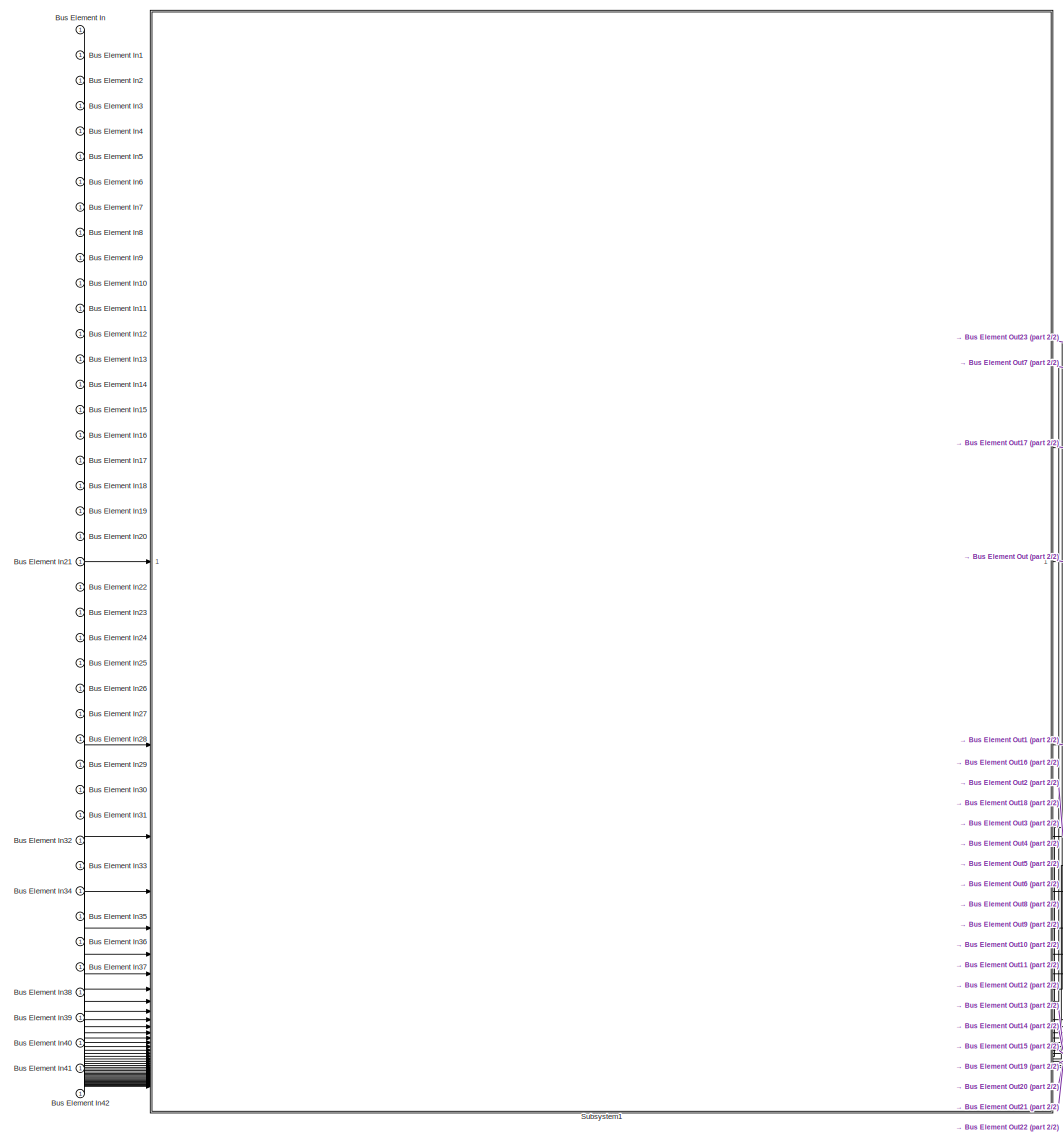
[diagram: root canvas - part 1/2, most of the canvas]
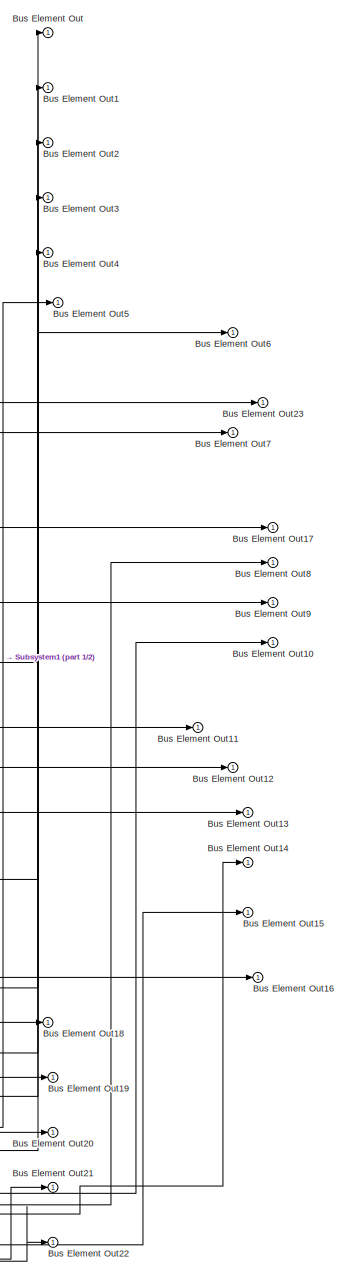
[diagram: root canvas - part 2/2, right side, full height]
MODEL slx_cfa6315b4d38
KIND model
CONFIG AbsTol = auto
CONFIG EnableMultiTasking = off
CONFIG FixedStep = 0.01
CONFIG MaxStep = auto
CONFIG MinStep = auto
CONFIG RelTol = 1e-3
CONFIG SampleTimeConstraint = Unconstrained
CONFIG SolverName = FixedStepAuto
CONFIG StartTime = 0.0
CONFIG StopTime = 10.0
BLOCK [Inport] Bus Element In
BLOCK [Inport] Bus Element In1
BLOCK [Inport] Bus Element In10
BLOCK [Inport] Bus Element In11
BLOCK [Inport] Bus Element In12
BLOCK [Inport] Bus Element In13
BLOCK [Inport] Bus Element In14
BLOCK [Inport] Bus Element In15
BLOCK [Inport] Bus Element In16
BLOCK [Inport] Bus Element In17
BLOCK [Inport] Bus Element In18
BLOCK [Inport] Bus Element In19
BLOCK [Inport] Bus Element In2
BLOCK [Inport] Bus Element In20
BLOCK [Inport] Bus Element In21
BLOCK [Inport] Bus Element In22
BLOCK [Inport] Bus Element In23
BLOCK [Inport] Bus Element In24
BLOCK [Inport] Bus Element In25
BLOCK [Inport] Bus Element In26
BLOCK [Inport] Bus Element In27
BLOCK [Inport] Bus Element In28
BLOCK [Inport] Bus Element In29
BLOCK [Inport] Bus Element In3
BLOCK [Inport] Bus Element In30
BLOCK [Inport] Bus Element In31
BLOCK [Inport] Bus Element In32
BLOCK [Inport] Bus Element In33
BLOCK [Inport] Bus Element In34
BLOCK [Inport] Bus Element In35
BLOCK [Inport] Bus Element In36
BLOCK [Inport] Bus Element In37
BLOCK [Inport] Bus Element In38
BLOCK [Inport] Bus Element In39
BLOCK [Inport] Bus Element In4
BLOCK [Inport] Bus Element In40
BLOCK [Inport] Bus Element In41
BLOCK [Inport] Bus Element In42
BLOCK [Inport] Bus Element In5
BLOCK [Inport] Bus Element In6
BLOCK [Inport] Bus Element In7
BLOCK [Inport] Bus Element In8
BLOCK [Inport] Bus Element In9
BLOCK [Outport] Bus Element Out
BLOCK [Outport] Bus Element Out1
BLOCK [Outport] Bus Element Out10
BLOCK [Outport] Bus Element Out11
BLOCK [Outport] Bus Element Out12
BLOCK [Outport] Bus Element Out13
BLOCK [Outport] Bus Element Out14
BLOCK [Outport] Bus Element Out15
BLOCK [Outport] Bus Element Out16
BLOCK [Outport] Bus Element Out17
BLOCK [Outport] Bus Element Out18
BLOCK [Outport] Bus Element Out19
BLOCK [Outport] Bus Element Out2
BLOCK [Outport] Bus Element Out20
BLOCK [Outport] Bus Element Out21
BLOCK [Outport] Bus Element Out22
BLOCK [Outport] Bus Element Out23
BLOCK [Outport] Bus Element Out3
BLOCK [Outport] Bus Element Out4
BLOCK [Outport] Bus Element Out5
BLOCK [Outport] Bus Element Out6
BLOCK [Outport] Bus Element Out7
BLOCK [Outport] Bus Element Out8
BLOCK [Outport] Bus Element Out9
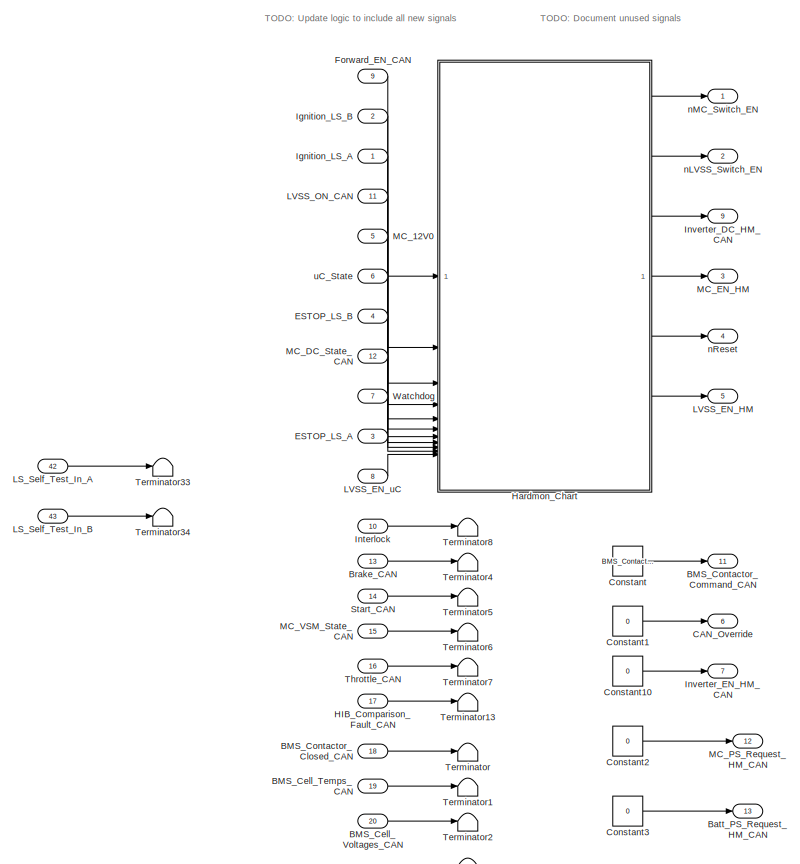
[diagram: Subsystem1 - part 1/2, full width, top band]
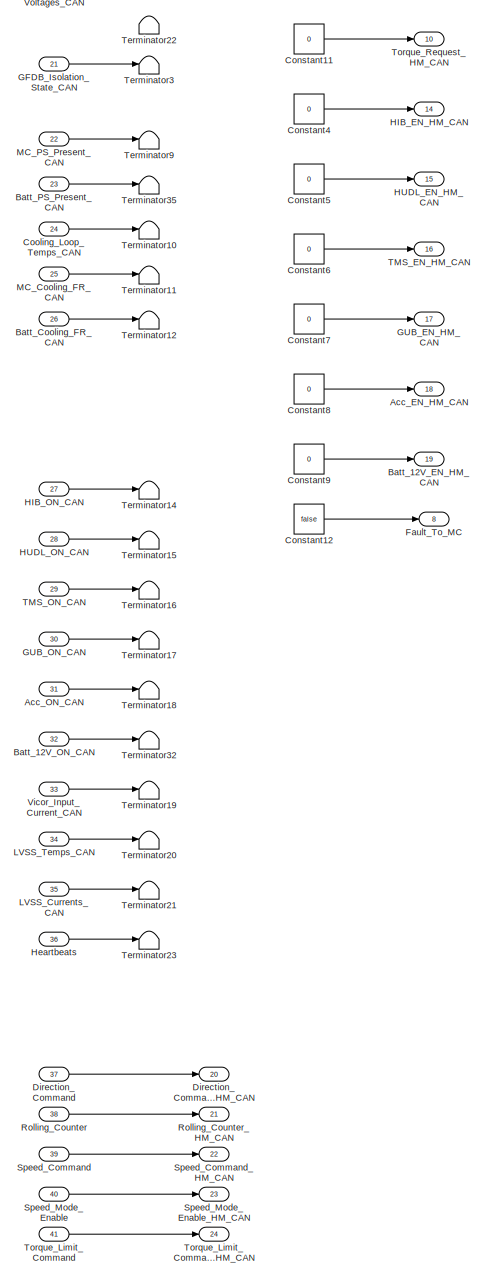
[diagram: Subsystem1 - part 2/2, bottom right region]
BLOCK [SubSystem] Subsystem1
BLOCK [Outport] Subsystem1/Acc_EN_HM_CAN
  OutDataTypeStr = boolean
  Port = 18
BLOCK [Inport] Subsystem1/Acc_ON_CAN
  OutDataTypeStr = boolean
  Port = 31
BLOCK [Inport] Subsystem1/BMS_Cell_Temps_CAN
  OutDataTypeStr = int32
  Port = 19
  PortDimensions = [1,45]
BLOCK [Inport] Subsystem1/BMS_Cell_Voltages_CAN
  OutDataTypeStr = int16
  Port = 20
  PortDimensions = [1,100]
BLOCK [Inport] Subsystem1/BMS_Contactor_Closed_CAN
  OutDataTypeStr = boolean
  Port = 18
BLOCK [Outport] Subsystem1/BMS_Contactor_Command_CAN
  OutDataTypeStr = Enum: BMS_Contactor_Command
  Port = 11
BLOCK [Outport] Subsystem1/Batt_12V_EN_HM_CAN
  OutDataTypeStr = boolean
  Port = 19
BLOCK [Inport] Subsystem1/Batt_12V_ON_CAN
  OutDataTypeStr = boolean
  Port = 32
BLOCK [Inport] Subsystem1/Batt_Cooling_FR_CAN
  OutDataTypeStr = int16
  Port = 26
BLOCK [Inport] Subsystem1/Batt_PS_Present_CAN
  OutDataTypeStr = uint8
  Port = 23
BLOCK [Outport] Subsystem1/Batt_PS_Request_HM_CAN
  Port = 13
BLOCK [Inport] Subsystem1/Brake_CAN
  OutDataTypeStr = boolean
  Port = 13
BLOCK [Outport] Subsystem1/CAN_Override
  OutDataTypeStr = boolean
  Port = 6
BLOCK [Constant] Subsystem1/Constant
  OutDataTypeStr = Enum: BMS_Contactor_Command
  Value = BMS_Contactor_Command.Open_Contactor
BLOCK [Constant] Subsystem1/Constant1
  OutDataTypeStr = boolean
  Value = 0
BLOCK [Constant] Subsystem1/Constant10
  OutDataTypeStr = boolean
  Value = 0
BLOCK [Constant] Subsystem1/Constant11
  OutDataTypeStr = int16
  Value = 0
BLOCK [Constant] Subsystem1/Constant12
  OutDataTypeStr = boolean
  Value = false
BLOCK [Constant] Subsystem1/Constant2
  OutDataTypeStr = uint8
  Value = 0
BLOCK [Constant] Subsystem1/Constant3
  OutDataTypeStr = uint8
  Value = 0
BLOCK [Constant] Subsystem1/Constant4
  OutDataTypeStr = boolean
  Value = 0
BLOCK [Constant] Subsystem1/Constant5
  OutDataTypeStr = boolean
  Value = 0
BLOCK [Constant] Subsystem1/Constant6
  OutDataTypeStr = boolean
  Value = 0
BLOCK [Constant] Subsystem1/Constant7
  OutDataTypeStr = boolean
  Value = 0
BLOCK [Constant] Subsystem1/Constant8
  OutDataTypeStr = boolean
  Value = 0
BLOCK [Constant] Subsystem1/Constant9
  OutDataTypeStr = boolean
  Value = 0
BLOCK [Inport] Subsystem1/Cooling_Loop_Temps_CAN
  OutDataTypeStr = int32
  Port = 24
  PortDimensions = [1,5]
BLOCK [Inport] Subsystem1/Direction_Command
  OutDataTypeStr = int16
  Port = 37
BLOCK [Outport] Subsystem1/Direction_Command_HM_CAN
  OutDataTypeStr = int16
  Port = 20
BLOCK [Inport] Subsystem1/ESTOP_LS_A
  OutDataTypeStr = boolean
  Port = 3
BLOCK [Inport] Subsystem1/ESTOP_LS_B
  OutDataTypeStr = boolean
  Port = 4
BLOCK [Outport] Subsystem1/Fault_To_MC
  OutDataTypeStr = boolean
  Port = 8
BLOCK [Inport] Subsystem1/Forward_EN_CAN
  OutDataTypeStr = boolean
  Port = 9
BLOCK [Inport] Subsystem1/GFDB_Isolation_State_CAN
  OutDataTypeStr = uint8
  Port = 21
BLOCK [Outport] Subsystem1/GUB_EN_HM_CAN
  OutDataTypeStr = boolean
  Port = 17
BLOCK [Inport] Subsystem1/GUB_ON_CAN
  OutDataTypeStr = boolean
  Port = 30
BLOCK [Inport] Subsystem1/HIB_Comparison_Fault_CAN
  OutDataTypeStr = boolean
  Port = 17
BLOCK [Outport] Subsystem1/HIB_EN_HM_CAN
  OutDataTypeStr = boolean
  Port = 14
BLOCK [Inport] Subsystem1/HIB_ON_CAN
  OutDataTypeStr = boolean
  Port = 27
BLOCK [Outport] Subsystem1/HUDL_EN_HM_CAN
  OutDataTypeStr = boolean
  Port = 15
BLOCK [Inport] Subsystem1/HUDL_ON_CAN
  OutDataTypeStr = boolean
  Port = 28
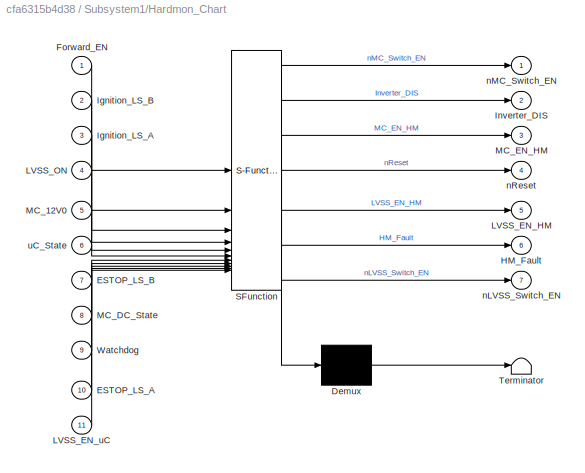
BLOCK [SubSystem] Subsystem1/Hardmon_Chart
  ErrorFcn = Stateflow.Translate.translate
  PermitHierarchicalResolution = ExplicitOnly
  PortSchema = {"entries":[{"content":{"sides":[{"content":{"connectorIds":["In1","In2","In3","In4","In5","In6","In7","In8","In9","In10","In11"]},"type":"ConnectorPlacement.EquallySpacedRectSide","uuid":"6d1a41ef-67e8-41d6-9adb-1761831f6d0e"},{"content":{"connectorIds":["Out1","Out7","Out2","Out3","Out4","Out5","Out6"],"side":"RIGHT"},"type":"ConnectorPlacement.EquallySpacedRectSide","uuid":"1c1f5b1f-9a19-48ee-a...<+326ch>
  SFBlockType = Chart
  TreatAsAtomicUnit = on
BLOCK [Demux] Subsystem1/Hardmon_Chart/ Demux 
  Outputs = 1
BLOCK [S-Function] Subsystem1/Hardmon_Chart/ SFunction 
  EnableBusSupport = off
  FunctionName = sf_sfun
  PortCounts = [11 8]
  SFcnIsStateOwnerBlock = off
  SFunctionDeploymentMode = off
  Tag = Stateflow S-Function 3
BLOCK [Terminator] Subsystem1/Hardmon_Chart/ Terminator 
BLOCK [Inport] Subsystem1/Hardmon_Chart/ESTOP_LS_A
  Port = 10
BLOCK [Inport] Subsystem1/Hardmon_Chart/ESTOP_LS_B
  Port = 7
BLOCK [Inport] Subsystem1/Hardmon_Chart/Forward_EN
BLOCK [Outport] Subsystem1/Hardmon_Chart/HM_Fault
  Port = 6
BLOCK [Inport] Subsystem1/Hardmon_Chart/Ignition_LS_A
  Port = 3
BLOCK [Inport] Subsystem1/Hardmon_Chart/Ignition_LS_B
  Port = 2
BLOCK [Outport] Subsystem1/Hardmon_Chart/Inverter_DIS
  Port = 2
BLOCK [Outport] Subsystem1/Hardmon_Chart/LVSS_EN_HM
  Port = 5
BLOCK [Inport] Subsystem1/Hardmon_Chart/LVSS_EN_uC
  Port = 11
BLOCK [Inport] Subsystem1/Hardmon_Chart/LVSS_ON
  Port = 4
BLOCK [Inport] Subsystem1/Hardmon_Chart/MC_12V0
  Port = 5
BLOCK [Inport] Subsystem1/Hardmon_Chart/MC_DC_State
  Port = 8
BLOCK [Outport] Subsystem1/Hardmon_Chart/MC_EN_HM
  Port = 3
BLOCK [Inport] Subsystem1/Hardmon_Chart/Watchdog
  Port = 9
BLOCK [Outport] Subsystem1/Hardmon_Chart/nLVSS_Switch_EN
  Port = 7
BLOCK [Outport] Subsystem1/Hardmon_Chart/nMC_Switch_EN
BLOCK [Outport] Subsystem1/Hardmon_Chart/nReset
  Port = 4
BLOCK [Inport] Subsystem1/Hardmon_Chart/uC_State
  Port = 6
BLOCK [Inport] Subsystem1/Heartbeats
  OutDataTypeStr = uint32
  Port = 36
  PortDimensions = [1,5]
BLOCK [Inport] Subsystem1/Ignition_LS_A
  OutDataTypeStr = boolean
BLOCK [Inport] Subsystem1/Ignition_LS_B
  OutDataTypeStr = boolean
  Port = 2
BLOCK [Inport] Subsystem1/Interlock
  OutDataTypeStr = boolean
  Port = 10
BLOCK [Outport] Subsystem1/Inverter_DC_HM_CAN
  OutDataTypeStr = boolean
  Port = 9
BLOCK [Outport] Subsystem1/Inverter_EN_HM_CAN
  OutDataTypeStr = boolean
  Port = 7
BLOCK [Inport] Subsystem1/LS_Self_Test_In_A
  OutDataTypeStr = boolean
  Port = 42
BLOCK [Inport] Subsystem1/LS_Self_Test_In_B
  OutDataTypeStr = boolean
  Port = 43
BLOCK [Inport] Subsystem1/LVSS_Currents_CAN
  OutDataTypeStr = int16
  Port = 35
  PortDimensions = [1,6]
BLOCK [Outport] Subsystem1/LVSS_EN_HM
  OutDataTypeStr = boolean
  Port = 5
BLOCK [Inport] Subsystem1/LVSS_EN_uC
  OutDataTypeStr = boolean
  Port = 8
BLOCK [Inport] Subsystem1/LVSS_ON_CAN
  OutDataTypeStr = boolean
  Port = 11
BLOCK [Inport] Subsystem1/LVSS_Temps_CAN
  OutDataTypeStr = int32
  Port = 34
  PortDimensions = [1,6]
BLOCK [Inport] Subsystem1/MC_12V0
  OutDataTypeStr = boolean
  Port = 5
BLOCK [Inport] Subsystem1/MC_Cooling_FR_CAN
  OutDataTypeStr = int16
  Port = 25
BLOCK [Inport] Subsystem1/MC_DC_State_CAN
  OutDataTypeStr = Enum: MC_DC_State
  Port = 12
BLOCK [Outport] Subsystem1/MC_EN_HM
  OutDataTypeStr = boolean
  Port = 3
BLOCK [Inport] Subsystem1/MC_PS_Present_CAN
  OutDataTypeStr = uint8
  Port = 22
BLOCK [Outport] Subsystem1/MC_PS_Request_HM_CAN
  Port = 12
BLOCK [Inport] Subsystem1/MC_VSM_State_CAN
  OutDataTypeStr = Enum: MC_VSM_State
  Port = 15
BLOCK [Inport] Subsystem1/Rolling_Counter
  OutDataTypeStr = int16
  Port = 38
BLOCK [Outport] Subsystem1/Rolling_Counter_HM_CAN
  OutDataTypeStr = int16
  Port = 21
BLOCK [Inport] Subsystem1/Speed_Command
  OutDataTypeStr = int16
  Port = 39
BLOCK [Outport] Subsystem1/Speed_Command_HM_CAN
  OutDataTypeStr = int16
  Port = 22
BLOCK [Inport] Subsystem1/Speed_Mode_Enable
  OutDataTypeStr = int16
  Port = 40
BLOCK [Outport] Subsystem1/Speed_Mode_Enable_HM_CAN
  OutDataTypeStr = int16
  Port = 23
BLOCK [Inport] Subsystem1/Start_CAN
  OutDataTypeStr = boolean
  Port = 14
BLOCK [Outport] Subsystem1/TMS_EN_HM_CAN
  OutDataTypeStr = boolean
  Port = 16
BLOCK [Inport] Subsystem1/TMS_ON_CAN
  OutDataTypeStr = boolean
  Port = 29
BLOCK [Terminator] Subsystem1/Terminator
BLOCK [Terminator] Subsystem1/Terminator1
BLOCK [Terminator] Subsystem1/Terminator10
BLOCK [Terminator] Subsystem1/Terminator11
BLOCK [Terminator] Subsystem1/Terminator12
BLOCK [Terminator] Subsystem1/Terminator13
BLOCK [Terminator] Subsystem1/Terminator14
BLOCK [Terminator] Subsystem1/Terminator15
BLOCK [Terminator] Subsystem1/Terminator16
BLOCK [Terminator] Subsystem1/Terminator17
BLOCK [Terminator] Subsystem1/Terminator18
BLOCK [Terminator] Subsystem1/Terminator19
BLOCK [Terminator] Subsystem1/Terminator2
BLOCK [Terminator] Subsystem1/Terminator20
BLOCK [Terminator] Subsystem1/Terminator21
BLOCK [Terminator] Subsystem1/Terminator22
BLOCK [Terminator] Subsystem1/Terminator23
BLOCK [Terminator] Subsystem1/Terminator3
BLOCK [Terminator] Subsystem1/Terminator32
BLOCK [Terminator] Subsystem1/Terminator33
BLOCK [Terminator] Subsystem1/Terminator34
BLOCK [Terminator] Subsystem1/Terminator35
BLOCK [Terminator] Subsystem1/Terminator4
BLOCK [Terminator] Subsystem1/Terminator5
BLOCK [Terminator] Subsystem1/Terminator6
BLOCK [Terminator] Subsystem1/Terminator7
BLOCK [Terminator] Subsystem1/Terminator8
BLOCK [Terminator] Subsystem1/Terminator9
BLOCK [Inport] Subsystem1/Throttle_CAN
  OutDataTypeStr = int16
  Port = 16
BLOCK [Inport] Subsystem1/Torque_Limit_Command
  OutDataTypeStr = int16
  Port = 41
BLOCK [Outport] Subsystem1/Torque_Limit_Command_HM_CAN
  OutDataTypeStr = int16
  Port = 24
BLOCK [Outport] Subsystem1/Torque_Request_HM_CAN
  OutDataTypeStr = int16
  Port = 10
BLOCK [Inport] Subsystem1/Vicor_Input_Current_CAN
  OutDataTypeStr = int16
  Port = 33
BLOCK [Inport] Subsystem1/Watchdog
  OutDataTypeStr = boolean
  Port = 7
BLOCK [Outport] Subsystem1/nLVSS_Switch_EN
  OutDataTypeStr = boolean
  Port = 2
BLOCK [Outport] Subsystem1/nMC_Switch_EN
  OutDataTypeStr = boolean
BLOCK [Outport] Subsystem1/nReset
  OutDataTypeStr = boolean
  Port = 4
BLOCK [Inport] Subsystem1/uC_State
  OutDataTypeStr = Enum: UC_State
  Port = 6
ANNOTATION Subsystem1: TODO: Document unused signals
ANNOTATION Subsystem1: TODO: Update logic to include all new signals
LINE Bus Element In10:1 -> Subsystem1:11
LINE Bus Element In11:1 -> Subsystem1:12
LINE Bus Element In12:1 -> Subsystem1:13
LINE Bus Element In13:1 -> Subsystem1:14
LINE Bus Element In14:1 -> Subsystem1:15
LINE Bus Element In15:1 -> Subsystem1:16
LINE Bus Element In16:1 -> Subsystem1:17
LINE Bus Element In17:1 -> Subsystem1:18
LINE Bus Element In18:1 -> Subsystem1:19
LINE Bus Element In19:1 -> Subsystem1:20
LINE Bus Element In1:1 -> Subsystem1:2
LINE Bus Element In20:1 -> Subsystem1:21
LINE Bus Element In21:1 -> Subsystem1:22
LINE Bus Element In22:1 -> Subsystem1:23
LINE Bus Element In23:1 -> Subsystem1:24
LINE Bus Element In24:1 -> Subsystem1:25
LINE Bus Element In25:1 -> Subsystem1:26
LINE Bus Element In26:1 -> Subsystem1:27
LINE Bus Element In27:1 -> Subsystem1:28
LINE Bus Element In28:1 -> Subsystem1:29
LINE Bus Element In29:1 -> Subsystem1:30
LINE Bus Element In2:1 -> Subsystem1:3
LINE Bus Element In30:1 -> Subsystem1:31
LINE Bus Element In31:1 -> Subsystem1:32
LINE Bus Element In32:1 -> Subsystem1:33
LINE Bus Element In33:1 -> Subsystem1:34
LINE Bus Element In34:1 -> Subsystem1:35
LINE Bus Element In35:1 -> Subsystem1:36
LINE Bus Element In36:1 -> Subsystem1:37
LINE Bus Element In37:1 -> Subsystem1:38
LINE Bus Element In38:1 -> Subsystem1:39
LINE Bus Element In39:1 -> Subsystem1:40
LINE Bus Element In3:1 -> Subsystem1:4
LINE Bus Element In40:1 -> Subsystem1:41
LINE Bus Element In41:1 -> Subsystem1:42
LINE Bus Element In42:1 -> Subsystem1:43
LINE Bus Element In4:1 -> Subsystem1:5
LINE Bus Element In5:1 -> Subsystem1:6
LINE Bus Element In6:1 -> Subsystem1:7
LINE Bus Element In7:1 -> Subsystem1:8
LINE Bus Element In8:1 -> Subsystem1:9
LINE Bus Element In9:1 -> Subsystem1:10
LINE Bus Element In:1 -> Subsystem1:1
LINE Subsystem1/Acc_ON_CAN:1 -> Subsystem1/Terminator18:1
LINE Subsystem1/BMS_Cell_Temps_CAN:1 -> Subsystem1/Terminator1:1
LINE Subsystem1/BMS_Cell_Voltages_CAN:1 -> Subsystem1/Terminator2:1
LINE Subsystem1/BMS_Contactor_Closed_CAN:1 -> Subsystem1/Terminator:1
LINE Subsystem1/Batt_12V_ON_CAN:1 -> Subsystem1/Terminator32:1
LINE Subsystem1/Batt_Cooling_FR_CAN:1 -> Subsystem1/Terminator12:1
LINE Subsystem1/Batt_PS_Present_CAN:1 -> Subsystem1/Terminator35:1
LINE Subsystem1/Brake_CAN:1 -> Subsystem1/Terminator4:1
LINE Subsystem1/Constant10:1 -> Subsystem1/Inverter_EN_HM_CAN:1
LINE Subsystem1/Constant11:1 -> Subsystem1/Torque_Request_HM_CAN:1
LINE Subsystem1/Constant12:1 -> Subsystem1/Fault_To_MC:1
LINE Subsystem1/Constant1:1 -> Subsystem1/CAN_Override:1
LINE Subsystem1/Constant2:1 -> Subsystem1/MC_PS_Request_HM_CAN:1
LINE Subsystem1/Constant3:1 -> Subsystem1/Batt_PS_Request_HM_CAN:1
LINE Subsystem1/Constant4:1 -> Subsystem1/HIB_EN_HM_CAN:1
LINE Subsystem1/Constant5:1 -> Subsystem1/HUDL_EN_HM_CAN:1
LINE Subsystem1/Constant6:1 -> Subsystem1/TMS_EN_HM_CAN:1
LINE Subsystem1/Constant7:1 -> Subsystem1/GUB_EN_HM_CAN:1
LINE Subsystem1/Constant8:1 -> Subsystem1/Acc_EN_HM_CAN:1
LINE Subsystem1/Constant9:1 -> Subsystem1/Batt_12V_EN_HM_CAN:1
LINE Subsystem1/Constant:1 -> Subsystem1/BMS_Contactor_Command_CAN:1
LINE Subsystem1/Cooling_Loop_Temps_CAN:1 -> Subsystem1/Terminator10:1
LINE Subsystem1/Direction_Command:1 -> Subsystem1/Direction_Command_HM_CAN:1
LINE Subsystem1/ESTOP_LS_A:1 -> Subsystem1/Hardmon_Chart:10
LINE Subsystem1/ESTOP_LS_B:1 -> Subsystem1/Hardmon_Chart:7
LINE Subsystem1/Forward_EN_CAN:1 -> Subsystem1/Hardmon_Chart:1
LINE Subsystem1/GFDB_Isolation_State_CAN:1 -> Subsystem1/Terminator3:1
LINE Subsystem1/GUB_ON_CAN:1 -> Subsystem1/Terminator17:1
LINE Subsystem1/HIB_Comparison_Fault_CAN:1 -> Subsystem1/Terminator13:1
LINE Subsystem1/HIB_ON_CAN:1 -> Subsystem1/Terminator14:1
LINE Subsystem1/HUDL_ON_CAN:1 -> Subsystem1/Terminator15:1
LINE Subsystem1/Hardmon_Chart:1 -> Subsystem1/nMC_Switch_EN:1
LINE Subsystem1/Hardmon_Chart:2 -> Subsystem1/Inverter_DC_HM_CAN:1
LINE Subsystem1/Hardmon_Chart:3 -> Subsystem1/MC_EN_HM:1
LINE Subsystem1/Hardmon_Chart:4 -> Subsystem1/nReset:1
LINE Subsystem1/Hardmon_Chart:5 -> Subsystem1/LVSS_EN_HM:1
LINE Subsystem1/Hardmon_Chart:7 -> Subsystem1/nLVSS_Switch_EN:1
LINE Subsystem1/Heartbeats:1 -> Subsystem1/Terminator23:1
LINE Subsystem1/Ignition_LS_A:1 -> Subsystem1/Hardmon_Chart:3
LINE Subsystem1/Ignition_LS_B:1 -> Subsystem1/Hardmon_Chart:2
LINE Subsystem1/Interlock:1 -> Subsystem1/Terminator8:1
LINE Subsystem1/LS_Self_Test_In_A:1 -> Subsystem1/Terminator33:1
LINE Subsystem1/LS_Self_Test_In_B:1 -> Subsystem1/Terminator34:1
LINE Subsystem1/LVSS_Currents_CAN:1 -> Subsystem1/Terminator21:1
LINE Subsystem1/LVSS_EN_uC:1 -> Subsystem1/Hardmon_Chart:11
LINE Subsystem1/LVSS_ON_CAN:1 -> Subsystem1/Hardmon_Chart:4
LINE Subsystem1/LVSS_Temps_CAN:1 -> Subsystem1/Terminator20:1
LINE Subsystem1/MC_12V0:1 -> Subsystem1/Hardmon_Chart:5
LINE Subsystem1/MC_Cooling_FR_CAN:1 -> Subsystem1/Terminator11:1
LINE Subsystem1/MC_DC_State_CAN:1 -> Subsystem1/Hardmon_Chart:8
LINE Subsystem1/MC_PS_Present_CAN:1 -> Subsystem1/Terminator9:1
LINE Subsystem1/MC_VSM_State_CAN:1 -> Subsystem1/Terminator6:1
LINE Subsystem1/Rolling_Counter:1 -> Subsystem1/Rolling_Counter_HM_CAN:1
LINE Subsystem1/Speed_Command:1 -> Subsystem1/Speed_Command_HM_CAN:1
LINE Subsystem1/Speed_Mode_Enable:1 -> Subsystem1/Speed_Mode_Enable_HM_CAN:1
LINE Subsystem1/Start_CAN:1 -> Subsystem1/Terminator5:1
LINE Subsystem1/TMS_ON_CAN:1 -> Subsystem1/Terminator16:1
LINE Subsystem1/Throttle_CAN:1 -> Subsystem1/Terminator7:1
LINE Subsystem1/Torque_Limit_Command:1 -> Subsystem1/Torque_Limit_Command_HM_CAN:1
LINE Subsystem1/Vicor_Input_Current_CAN:1 -> Subsystem1/Terminator19:1
LINE Subsystem1/Watchdog:1 -> Subsystem1/Hardmon_Chart:9
LINE Subsystem1/uC_State:1 -> Subsystem1/Hardmon_Chart:6
LINE Subsystem1:1 -> Bus Element Out:1
LINE Subsystem1:10 -> Bus Element Out17:1
LINE Subsystem1:11 -> Bus Element Out8:1
LINE Subsystem1:12 -> Bus Element Out9:1
LINE Subsystem1:13 -> Bus Element Out10:1
LINE Subsystem1:14 -> Bus Element Out11:1
LINE Subsystem1:15 -> Bus Element Out12:1
LINE Subsystem1:16 -> Bus Element Out13:1
LINE Subsystem1:17 -> Bus Element Out14:1
LINE Subsystem1:18 -> Bus Element Out15:1
LINE Subsystem1:19 -> Bus Element Out16:1
LINE Subsystem1:2 -> Bus Element Out1:1
LINE Subsystem1:20 -> Bus Element Out18:1
LINE Subsystem1:21 -> Bus Element Out19:1
LINE Subsystem1:22 -> Bus Element Out20:1
LINE Subsystem1:23 -> Bus Element Out21:1
LINE Subsystem1:24 -> Bus Element Out22:1
LINE Subsystem1:3 -> Bus Element Out2:1
LINE Subsystem1:4 -> Bus Element Out3:1
LINE Subsystem1:5 -> Bus Element Out4:1
LINE Subsystem1:6 -> Bus Element Out5:1
LINE Subsystem1:7 -> Bus Element Out6:1
LINE Subsystem1:8 -> Bus Element Out23:1
LINE Subsystem1:9 -> Bus Element Out7:1
CHART Subsystem1/Hardmon_Chart states=40 transitions=40
  STATE_LABEL '<!DOCTYPE HTML PUBLIC "-//W3C//DTD HTML 4.0//EN" "http://www.w3.org/TR/REC-html40/strict.dtd">\n<html><head><meta name="qrichtext" content="1" /><style type="text/css">\np, li { white-space: pre-wrap; }\n</style></head><body align="left" style=" font-family:\'Helvetica\'; font-size:12px; font-weight:400; font-style:normal;">\n<p align="left" style=" margin-top:0px; margin-bottom:0px; margin-left:0px; ma...<+699ch>'
  STATE_LABEL 'Normal_Operation'
  STATE_LABEL 'ESTOP_Checking'
  STATE_LABEL 'count\nentry:\nESTOP_Counter = ESTOP_Counter + 1;\n'
  STATE_LABEL 'ESTOP_Inactive\nentry:\nHM_Fault = false;\nESTOP_Counter = 0;\nnMC_Switch_EN = false;\nnLVSS_Switch_EN = false;\nLVSS_EN_HM = LVSS_EN_uC;'
  STATE_LABEL '[ESTOP_LS_A == true && uC_State ~= UC_State.Fault && uC_State ~= UC_State.Estop ]'
  STATE_LABEL '[ESTOP_LS_A == true || uC_State == UC_State.Fault || uC_State == UC_State.Estop ]'
  STATE_LABEL 'after(0.1,sec)'
  STATE_LABEL 'Watchdog_Checking'
  STATE_LABEL 'WD_Low\nentry:\nWD_Counter = 0;'
  STATE_LABEL 'Counting\nentry:\nWD_Counter = WD_Counter + 1;'
  STATE_LABEL 'after(0.5, sec)'
  STATE_LABEL 'WD_High\nentry:\nWD_Counter = 0;'
  STATE_LABEL 'Counting\nentry:\nWD_Counter = WD_Counter + 1;'
  STATE_LABEL 'after(0.5, sec)'
  STATE_LABEL '[Watchdog == true]'
  STATE_LABEL '[Watchdog == false]'
  STATE_LABEL 'Invalid_State_Checking'
  STATE_LABEL 'count\nentry:\nInvalid_State_Counter = Invalid_State_Counter + 1;\n'
  STATE_LABEL 'Invalid_State_Inactive\nentry:\nHM_Fault = false;\nInvalid_State_Counter = 0;\nnMC_Switch_EN = false;\nnLVSS_Switch_EN = false;\nLVSS_EN_HM = LVSS_EN_uC;'
  STATE_LABEL '[(Forward_EN ~= true || Ignition_LS_A ~= true) && uC_State == UC_State.MC_Active]'
  STATE_LABEL '[~((Forward_EN ~= true || Ignition_LS_A ~= true) && uC_State == UC_State.MC_Active)]'
  STATE_LABEL 'after(0.5,sec)'
  STATE_LABEL 'Ignition_Level_Checking'
  STATE_LABEL 'count\nentry:\nIgnition_State_Counter = Ignition_State_Counter + 1;\n'
  STATE_LABEL 'Ignition_State_Inactive\nentry:\nHM_Fault = false;\nIgnition_State_Counter = 0;\nnMC_Switch_EN = false;\nnLVSS_Switch_EN = false;\nLVSS_EN_HM = LVSS_EN_uC;\n'
  STATE_LABEL '[Ignition_LS_A ~= Ignition_LS_B  && uC_State ~= UC_State.Fault]'
  STATE_LABEL '[Ignition_LS_A == Ignition_LS_B  || uC_State == UC_State.Fault ]'
  STATE_LABEL 'after(0.5,sec)'
  STATE_LABEL 'ESTOP_Level_Checking'
  STATE_LABEL 'count\nentry:\nESTOP_State_Counter = ESTOP_State_Counter + 1;\n'
  STATE_LABEL 'ESTOP_State_Inactive\nentry:\nHM_Fault = false;\nESTOP_State_Counter = 0;\nnMC_Switch_EN = false;\nnLVSS_Switch_EN = false;\nLVSS_EN_HM = LVSS_EN_uC;\n'
  STATE_LABEL '[ESTOP_LS_A ~= ESTOP_LS_B  && uC_State ~= UC_State.Fault ]'
  STATE_LABEL '[ESTOP_LS_A == ESTOP_LS_B  || uC_State == UC_State.Fault ]'
  STATE_LABEL 'after(0.5,sec)'
  STATE_LABEL 'LVSS_Checking'
  STATE_LABEL 'count\nentry:\nLVSS_Counter = LVSS_Counter + 1;\n'
  STATE_LABEL 'Invalid_State_Inactive\nentry:\nHM_Fault = false;\nLVSS_Counter = 0;\nnMC_Switch_EN = false;\nnLVSS_Switch_EN = false;\nLVSS_EN_HM = LVSS_EN_uC;\n'
  STATE_LABEL '[LVSS_ON ~= LVSS_EN_uC  && uC_State ~= UC_State.Fault ]'
  STATE_LABEL '[LVSS_ON == LVSS_EN_uC  || uC_State == UC_State.Fault ]'
CHART  states=0 transitions=0
